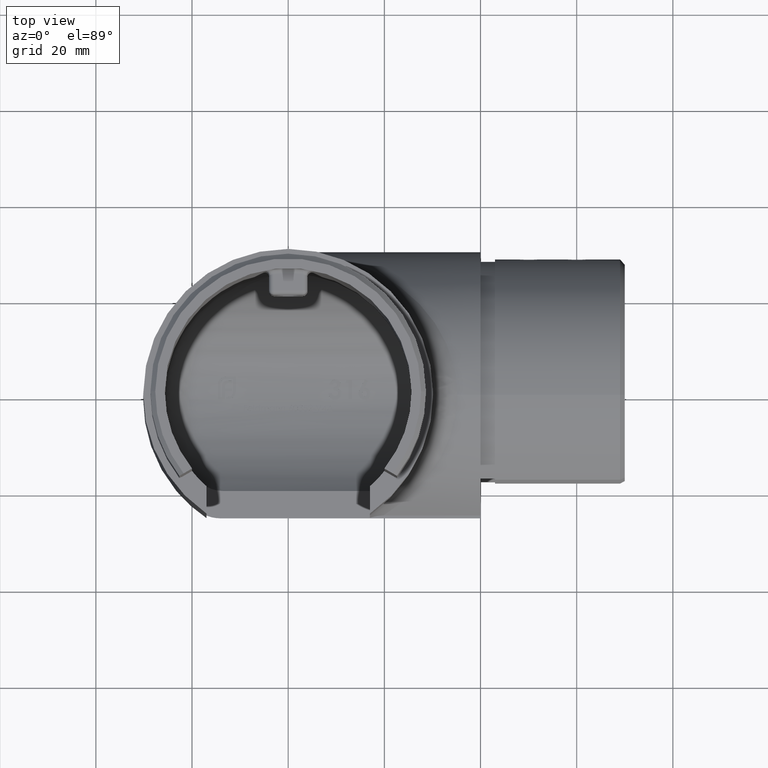
[diagram: clean part render]
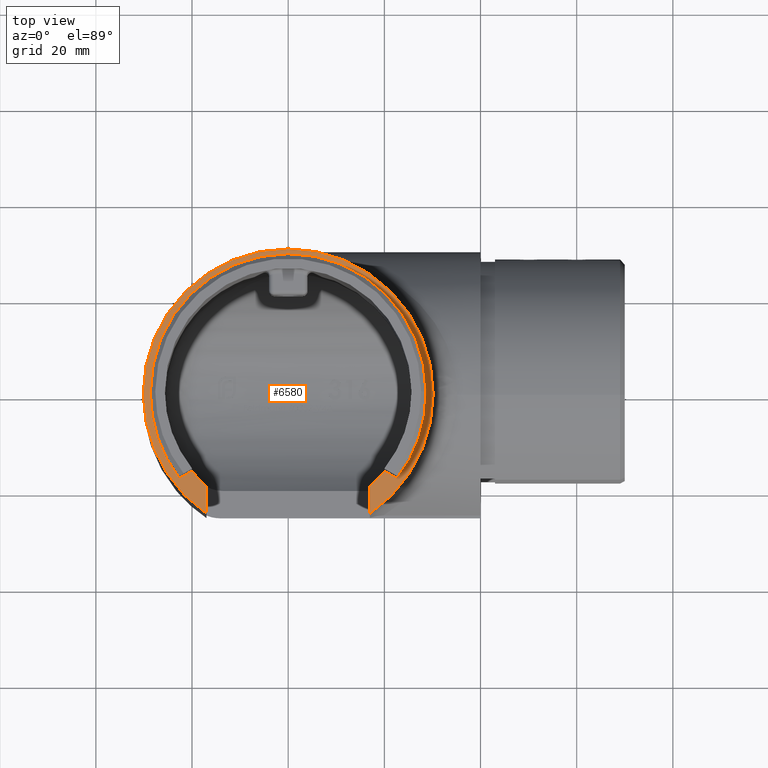
[diagram: same view with one face highlighted and labeled with its STEP entity id]
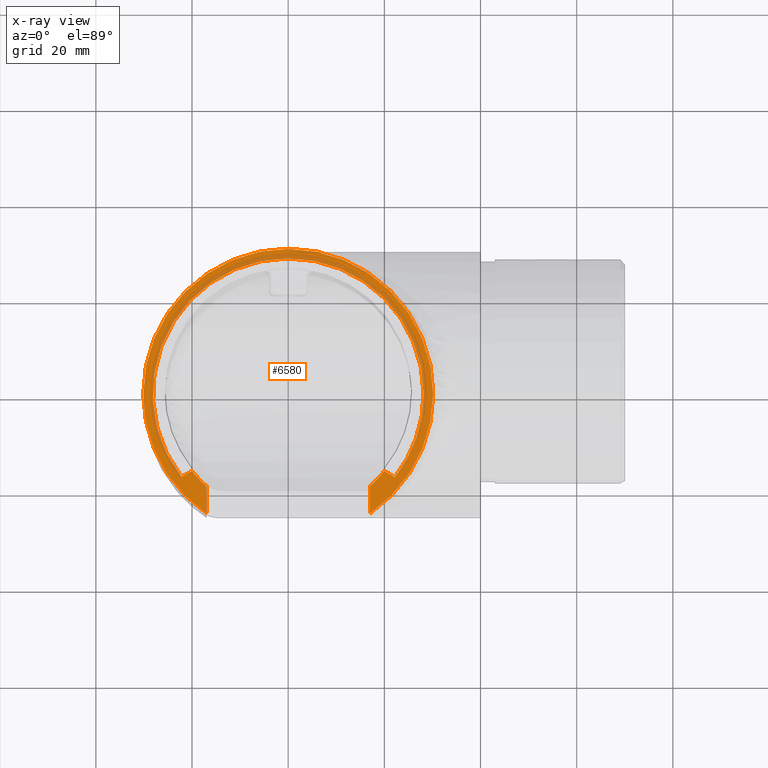
[diagram: x-ray of the same camera — body ghosted, the highlighted face saturated]
A machine part, top view. The second image highlights one B-rep face of the part: STEP entity #6580.
The next image is the same camera in x-ray: the body ghosted, the highlighted face saturated — about 28% of this face is hidden behind the body in this view.
In plain terms, the highlighted planar face has unit normal (0, 0, -1).
Its self-contained STEP definition (entity closure, byte-faithful):
#13 = DIRECTION ( 'NONE',  ( 0.000000000000000000, -0.000000000000000000, 1.000000000000000000 ) ) ;
#74 = CIRCLE ( 'NONE', #18648, 30.14999999999999503 ) ;
#225 = VERTEX_POINT ( 'NONE', #10610 ) ;
#447 = ORIENTED_EDGE ( 'NONE', *, *, #6456, .F. ) ;
#574 = AXIS2_PLACEMENT_3D ( 'NONE', #6252, #16641, #9241 ) ;
#745 = EDGE_CURVE ( 'NONE', #5586, #18790, #9796, .T. ) ;
#759 = CIRCLE ( 'NONE', #5580, 28.14999999999999858 ) ;
#976 = AXIS2_PLACEMENT_3D ( 'NONE', #7427, #13, #7675 ) ;
#1444 = DIRECTION ( 'NONE',  ( -0.000000000000000000, -1.000000000000000000, 0.000000000000000000 ) ) ;
#1552 = CARTESIAN_POINT ( 'NONE',  ( 16.99999999999999645, -19.20735536194402471, 0.000000000000000000 ) ) ;
#2115 = CARTESIAN_POINT ( 'NONE',  ( 16.99999999999999645, -24.90025100275095227, 0.000000000000000000 ) ) ;
#2250 = EDGE_CURVE ( 'NONE', #14565, #225, #8971, .T. ) ;
#2488 = EDGE_CURVE ( 'NONE', #11209, #14565, #15942, .T. ) ;
#2648 = ORIENTED_EDGE ( 'NONE', *, *, #10365, .F. ) ;
#2649 = CARTESIAN_POINT ( 'NONE',  ( 0.000000000000000000, 0.000000000000000000, 0.000000000000000000 ) ) ;
#2870 = AXIS2_PLACEMENT_3D ( 'NONE', #15842, #8132, #3811 ) ;
#3136 = VECTOR ( 'NONE', #15050, 1000.000000000000000 ) ;
#3292 = ORIENTED_EDGE ( 'NONE', *, *, #8748, .F. ) ;
#3391 = AXIS2_PLACEMENT_3D ( 'NONE', #14271, #5353, #11459 ) ;
#3487 = CARTESIAN_POINT ( 'NONE',  ( 0.000000000000000000, 0.000000000000000000, 0.000000000000000000 ) ) ;
#3811 = DIRECTION ( 'NONE',  ( 0.000000000000000000, 1.000000000000000000, 0.000000000000000000 ) ) ;
#4071 = VERTEX_POINT ( 'NONE', #2115 ) ;
#4280 = CIRCLE ( 'NONE', #2870, 28.14999999999999858 ) ;
#4357 = ORIENTED_EDGE ( 'NONE', *, *, #5840, .F. ) ;
#4527 = AXIS2_PLACEMENT_3D ( 'NONE', #17964, #14967, #15026 ) ;
#4720 = DIRECTION ( 'NONE',  ( -1.000000000000000000, 0.000000000000000000, 0.000000000000000000 ) ) ;
#4794 = CARTESIAN_POINT ( 'NONE',  ( 0.000000000000000000, 0.000000000000000000, 0.000000000000000000 ) ) ;
#5056 = VERTEX_POINT ( 'NONE', #9546 ) ;
#5353 = DIRECTION ( 'NONE',  ( 0.000000000000000000, 0.000000000000000000, -1.000000000000000000 ) ) ;
#5392 = ORIENTED_EDGE ( 'NONE', *, *, #5516, .F. ) ;
#5471 = CARTESIAN_POINT ( 'NONE',  ( 22.18833575336837427, -17.32340198967265010, 0.000000000000000000 ) ) ;
#5516 = EDGE_CURVE ( 'NONE', #5056, #5586, #74, .T. ) ;
#5545 = CARTESIAN_POINT ( 'NONE',  ( -17.00000000000000000, -24.90025100275094871, 0.000000000000000000 ) ) ;
#5580 = AXIS2_PLACEMENT_3D ( 'NONE', #2649, #5766, #10044 ) ;
#5586 = VERTEX_POINT ( 'NONE', #10966 ) ;
#5766 = DIRECTION ( 'NONE',  ( 0.000000000000000000, 0.000000000000000000, 1.000000000000000000 ) ) ;
#5840 = EDGE_CURVE ( 'NONE', #14567, #11209, #759, .T. ) ;
#6109 = LINE ( 'NONE', #17806, #8692 ) ;
#6159 = DIRECTION ( 'NONE',  ( 0.000000000000000000, 0.000000000000000000, -1.000000000000000000 ) ) ;
#6252 = CARTESIAN_POINT ( 'NONE',  ( 0.000000000000000000, 0.000000000000000000, 0.000000000000000000 ) ) ;
#6314 = FACE_OUTER_BOUND ( 'NONE', #16360, .T. ) ;
#6414 = VECTOR ( 'NONE', #14157, 1000.000000000000000 ) ;
#6456 = EDGE_CURVE ( 'NONE', #225, #9175, #11218, .T. ) ;
#6458 = ORIENTED_EDGE ( 'NONE', *, *, #12932, .F. ) ;
#6580 = ADVANCED_FACE ( 'NONE', ( #6314 ), #12943, .F. ) ;
#7155 = DIRECTION ( 'NONE',  ( -1.000000000000000000, 0.000000000000000000, -0.000000000000000000 ) ) ;
#7192 = CARTESIAN_POINT ( 'NONE',  ( 0.000000000000000000, 28.14999999999999858, 0.000000000000000000 ) ) ;
#7202 = AXIS2_PLACEMENT_3D ( 'NONE', #3487, #13911, #8012 ) ;
#7427 = CARTESIAN_POINT ( 'NONE',  ( 0.000000000000000000, 0.000000000000000000, 0.000000000000000000 ) ) ;
#7675 = DIRECTION ( 'NONE',  ( -1.000000000000000000, 0.000000000000000000, 0.000000000000000000 ) ) ;
#8012 = DIRECTION ( 'NONE',  ( -1.000000000000000000, 0.000000000000000000, 0.000000000000000000 ) ) ;
#8132 = DIRECTION ( 'NONE',  ( 0.000000000000000000, 0.000000000000000000, 1.000000000000000000 ) ) ;
#8191 = ORIENTED_EDGE ( 'NONE', *, *, #15933, .F. ) ;
#8692 = VECTOR ( 'NONE', #17672, 1000.000000000000000 ) ;
#8748 = EDGE_CURVE ( 'NONE', #9175, #5056, #13878, .T. ) ;
#8971 = LINE ( 'NONE', #12459, #6414 ) ;
#9015 = ORIENTED_EDGE ( 'NONE', *, *, #2488, .F. ) ;
#9175 = VERTEX_POINT ( 'NONE', #17612 ) ;
#9241 = DIRECTION ( 'NONE',  ( -1.000000000000000000, 0.000000000000000000, 0.000000000000000000 ) ) ;
#9248 = VERTEX_POINT ( 'NONE', #1552 ) ;
#9546 = CARTESIAN_POINT ( 'NONE',  ( -17.00000000000000000, -24.90025100275094871, 0.000000000000000000 ) ) ;
#9756 = CARTESIAN_POINT ( 'NONE',  ( 30.14999999999999503, 3.692310099429269608E-15, 0.000000000000000000 ) ) ;
#9796 = CIRCLE ( 'NONE', #3391, 30.14999999999999503 ) ;
#10044 = DIRECTION ( 'NONE',  ( 0.000000000000000000, 1.000000000000000000, 0.000000000000000000 ) ) ;
#10135 = ORIENTED_EDGE ( 'NONE', *, *, #12331, .F. ) ;
#10365 = EDGE_CURVE ( 'NONE', #4071, #9248, #17353, .T. ) ;
#10610 = CARTESIAN_POINT ( 'NONE',  ( -20.00000000000000355, -16.05996575338813770, 0.000000000000000000 ) ) ;
#10776 = CARTESIAN_POINT ( 'NONE',  ( 20.00000000000000355, -16.05996575338813770, 0.000000000000000000 ) ) ;
#10805 = EDGE_CURVE ( 'NONE', #19058, #14567, #4280, .T. ) ;
#10966 = CARTESIAN_POINT ( 'NONE',  ( -30.14999999999999503, 0.000000000000000000, 0.000000000000000000 ) ) ;
#11209 = VERTEX_POINT ( 'NONE', #7192 ) ;
#11218 = CIRCLE ( 'NONE', #7202, 25.64999999999999858 ) ;
#11443 = DIRECTION ( 'NONE',  ( 0.000000000000000000, 0.000000000000000000, -1.000000000000000000 ) ) ;
#11459 = DIRECTION ( 'NONE',  ( -1.000000000000000000, 0.000000000000000000, 0.000000000000000000 ) ) ;
#12062 = CARTESIAN_POINT ( 'NONE',  ( 16.99999999999999645, -19.20735536194402471, 0.000000000000000000 ) ) ;
#12331 = EDGE_CURVE ( 'NONE', #14736, #19058, #6109, .T. ) ;
#12459 = CARTESIAN_POINT ( 'NONE',  ( -22.62550828884467791, -17.57580367071220806, 0.000000000000000000 ) ) ;
#12932 = EDGE_CURVE ( 'NONE', #18790, #4071, #14713, .T. ) ;
#12943 = PLANE ( 'NONE',  #13189 ) ;
#13189 = AXIS2_PLACEMENT_3D ( 'NONE', #14394, #11443, #7155 ) ;
#13878 = LINE ( 'NONE', #5545, #18779 ) ;
#13911 = DIRECTION ( 'NONE',  ( 0.000000000000000000, -0.000000000000000000, 1.000000000000000000 ) ) ;
#14157 = DIRECTION ( 'NONE',  ( 0.8660254037844382635, 0.5000000000000006661, 0.000000000000000000 ) ) ;
#14271 = CARTESIAN_POINT ( 'NONE',  ( 0.000000000000000000, 0.000000000000000000, 0.000000000000000000 ) ) ;
#14394 = CARTESIAN_POINT ( 'NONE',  ( 0.000000000000000000, 0.000000000000000000, 0.000000000000000000 ) ) ;
#14565 = VERTEX_POINT ( 'NONE', #14710 ) ;
#14567 = VERTEX_POINT ( 'NONE', #18811 ) ;
#14710 = CARTESIAN_POINT ( 'NONE',  ( -22.18833575336837782, -17.32340198967265366, 0.000000000000000000 ) ) ;
#14713 = CIRCLE ( 'NONE', #574, 30.14999999999999503 ) ;
#14736 = VERTEX_POINT ( 'NONE', #10776 ) ;
#14967 = DIRECTION ( 'NONE',  ( 0.000000000000000000, 0.000000000000000000, 1.000000000000000000 ) ) ;
#15026 = DIRECTION ( 'NONE',  ( 0.000000000000000000, 1.000000000000000000, 0.000000000000000000 ) ) ;
#15050 = DIRECTION ( 'NONE',  ( 0.000000000000000000, 1.000000000000000000, 0.000000000000000000 ) ) ;
#15842 = CARTESIAN_POINT ( 'NONE',  ( 0.000000000000000000, 0.000000000000000000, 0.000000000000000000 ) ) ;
#15933 = EDGE_CURVE ( 'NONE', #9248, #14736, #16271, .T. ) ;
#15942 = CIRCLE ( 'NONE', #4527, 28.14999999999999858 ) ;
#16271 = CIRCLE ( 'NONE', #976, 25.64999999999999858 ) ;
#16360 = EDGE_LOOP ( 'NONE', ( #9015, #4357, #18442, #10135, #8191, #2648, #6458, #18956, #5392, #3292, #447, #19171 ) ) ;
#16641 = DIRECTION ( 'NONE',  ( 0.000000000000000000, 0.000000000000000000, -1.000000000000000000 ) ) ;
#17353 = LINE ( 'NONE', #12062, #3136 ) ;
#17612 = CARTESIAN_POINT ( 'NONE',  ( -17.00000000000000355, -19.20735536194402115, 0.000000000000000000 ) ) ;
#17672 = DIRECTION ( 'NONE',  ( 0.8660254037844382635, -0.5000000000000006661, 0.000000000000000000 ) ) ;
#17806 = CARTESIAN_POINT ( 'NONE',  ( 20.00000000000000000, -16.05996575338813770, 0.000000000000000000 ) ) ;
#17964 = CARTESIAN_POINT ( 'NONE',  ( 0.000000000000000000, 0.000000000000000000, 0.000000000000000000 ) ) ;
#18442 = ORIENTED_EDGE ( 'NONE', *, *, #10805, .F. ) ;
#18648 = AXIS2_PLACEMENT_3D ( 'NONE', #4794, #6159, #4720 ) ;
#18779 = VECTOR ( 'NONE', #1444, 1000.000000000000000 ) ;
#18790 = VERTEX_POINT ( 'NONE', #9756 ) ;
#18811 = CARTESIAN_POINT ( 'NONE',  ( 28.14999999999999858, 0.000000000000000000, 0.000000000000000000 ) ) ;
#18956 = ORIENTED_EDGE ( 'NONE', *, *, #745, .F. ) ;
#19058 = VERTEX_POINT ( 'NONE', #5471 ) ;
#19171 = ORIENTED_EDGE ( 'NONE', *, *, #2250, .F. ) ;